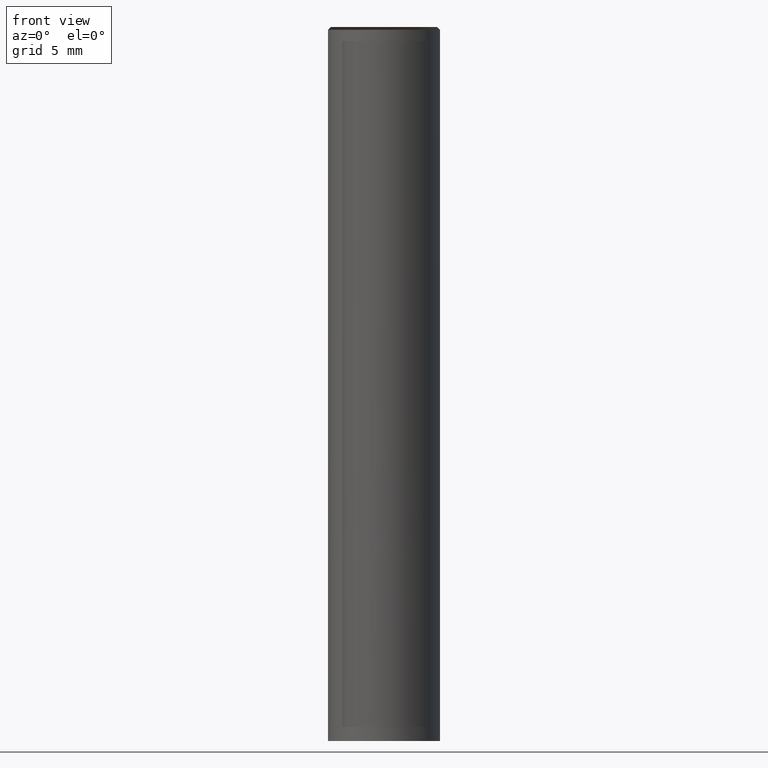
[diagram: clean part render]
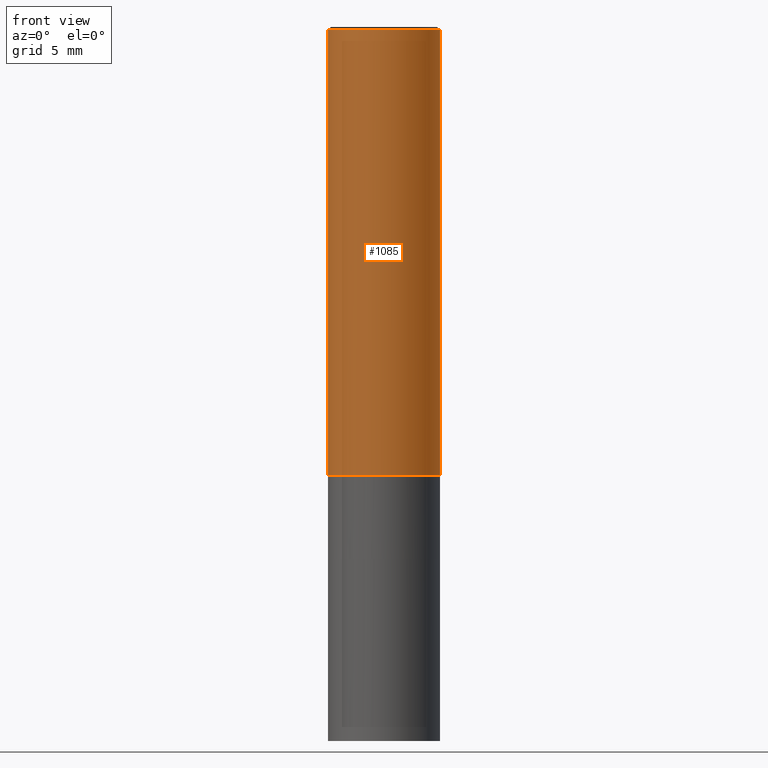
[diagram: same view with one face highlighted and labeled with its STEP entity id]
A machine part, front view. The second image highlights one B-rep face of the part: STEP entity #1085.
In plain terms, the highlighted face is a freeform B-spline surface patch.
Its self-contained STEP definition (entity closure, byte-faithful):
#798=CARTESIAN_POINT('',(4.0,0.0,0.0));
#802=CARTESIAN_POINT('',(-4.0,0.0,0.0));
#803=CARTESIAN_POINT('',(4.0,0.0,31.8));
#807=CARTESIAN_POINT('',(-4.0,0.0,31.8));
#814=CARTESIAN_POINT('',(-4.0,-4.0,0.0));
#815=CARTESIAN_POINT('',(0.0,-4.0,0.0));
#816=CARTESIAN_POINT('',(4.0,-4.0,0.0));
#817=CARTESIAN_POINT('',(-4.0,-4.0,31.8));
#818=CARTESIAN_POINT('',(0.0,-4.0,31.8));
#819=CARTESIAN_POINT('',(4.0,-4.0,31.8));
#1066=(
BOUNDED_SURFACE()
B_SPLINE_SURFACE(1,2,(
(#802,#814,#815,#816,#798),
(#807,#817,#818,#819,#803)
), .UNSPECIFIED.,.F.,.F.,.F.)
B_SPLINE_SURFACE_WITH_KNOTS((2,2),(3,2,3),(
0.0,1.0),(
0.0,0.5,1.0), .UNSPECIFIED.)
GEOMETRIC_REPRESENTATION_ITEM()
RATIONAL_B_SPLINE_SURFACE(((1.0,0.707106781187,1.0,0.707106781187,1.0),
(1.0,0.707106781187,1.0,0.707106781187,1.0)
))
REPRESENTATION_ITEM('')
SURFACE()
);
#1067=(
BOUNDED_CURVE()
B_SPLINE_CURVE(2,(#798,#816,#815,#814,#802),.UNSPECIFIED.,.F.,.F.)
B_SPLINE_CURVE_WITH_KNOTS((3,2,3),
(0.0,0.5,1.0),.UNSPECIFIED.)
CURVE()
GEOMETRIC_REPRESENTATION_ITEM()
RATIONAL_B_SPLINE_CURVE((1.0,0.707106781187,1.0,0.707106781187,1.0))
REPRESENTATION_ITEM('')
);
#1068=(
BOUNDED_CURVE()
B_SPLINE_CURVE(1,(#802,#807),.UNSPECIFIED.,.F.,.F.)
B_SPLINE_CURVE_WITH_KNOTS((2,2),
(0.0,1.0),.UNSPECIFIED.)
CURVE()
GEOMETRIC_REPRESENTATION_ITEM()
RATIONAL_B_SPLINE_CURVE((1.0,1.0))
REPRESENTATION_ITEM('')
);
#1069=(
BOUNDED_CURVE()
B_SPLINE_CURVE(2,(#807,#817,#818,#819,#803),.UNSPECIFIED.,.F.,.F.)
B_SPLINE_CURVE_WITH_KNOTS((3,2,3),
(0.0,0.5,1.0),.UNSPECIFIED.)
CURVE()
GEOMETRIC_REPRESENTATION_ITEM()
RATIONAL_B_SPLINE_CURVE((1.0,0.707106781187,1.0,0.707106781187,1.0))
REPRESENTATION_ITEM('')
);
#1070=(
BOUNDED_CURVE()
B_SPLINE_CURVE(1,(#803,#798),.UNSPECIFIED.,.F.,.F.)
B_SPLINE_CURVE_WITH_KNOTS((2,2),
(0.0,1.0),.UNSPECIFIED.)
CURVE()
GEOMETRIC_REPRESENTATION_ITEM()
RATIONAL_B_SPLINE_CURVE((1.0,1.0))
REPRESENTATION_ITEM('')
);
#1071=VERTEX_POINT('',#798);
#1072=VERTEX_POINT('',#802);
#1073=VERTEX_POINT('',#803);
#1074=VERTEX_POINT('',#807);
#1075=EDGE_CURVE('',#1071,#1072,#1067,.T.);
#1076=EDGE_CURVE('',#1072,#1074,#1068,.T.);
#1077=EDGE_CURVE('',#1074,#1073,#1069,.T.);
#1078=EDGE_CURVE('',#1073,#1071,#1070,.T.);
#1079=ORIENTED_EDGE('',*,*,#1075,.T.);
#1080=ORIENTED_EDGE('',*,*,#1076,.T.);
#1081=ORIENTED_EDGE('',*,*,#1077,.T.);
#1082=ORIENTED_EDGE('',*,*,#1078,.T.);
#1083=EDGE_LOOP('',(#1079,#1080,#1081,#1082));
#1084=FACE_OUTER_BOUND('',#1083,.T.);
#1085=ADVANCED_FACE('',(#1084),#1066,.T.);